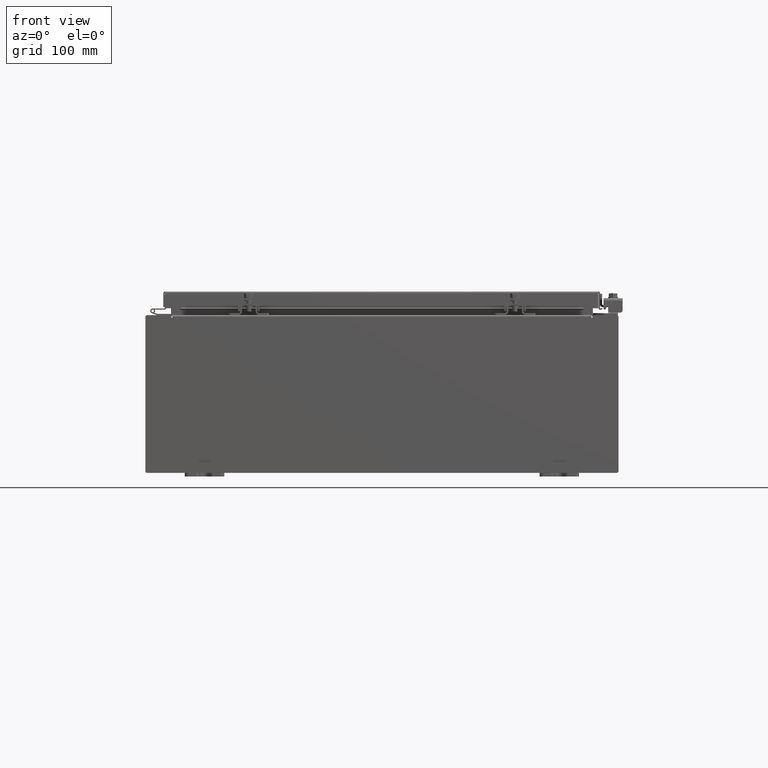
[diagram: clean part render]
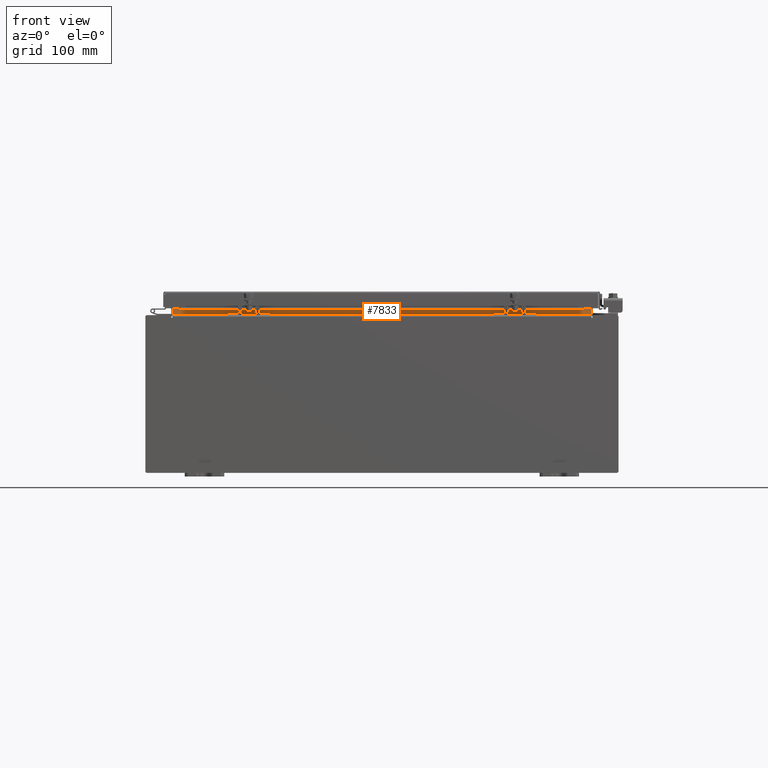
[diagram: same view with one face highlighted and labeled with its STEP entity id]
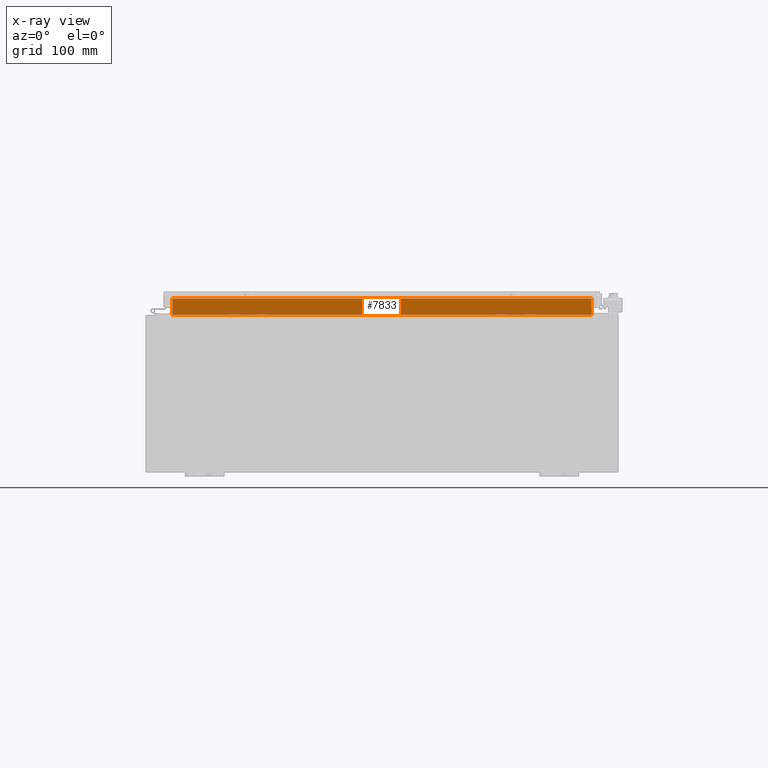
[diagram: x-ray of the same camera — body ghosted, the highlighted face saturated]
A machine part, front view. The second image highlights one B-rep face of the part: STEP entity #7833.
The next image is the same camera in x-ray: the body ghosted, the highlighted face saturated — about 0% of this face is hidden behind the body in this view.
In plain terms, the highlighted planar face has unit normal (-0, -1, 0).
Its self-contained STEP definition (entity closure, byte-faithful):
#1613 = LINE ( 'NONE', #17755, #13400 ) ;
#2536 = VERTEX_POINT ( 'NONE', #16855 ) ;
#2654 = LINE ( 'NONE', #27830, #15971 ) ;
#2908 = EDGE_LOOP ( 'NONE', ( #26193, #23553, #11348, #5687 ) ) ;
#3128 = DIRECTION ( 'NONE',  ( 1.665334536937734800E-016, -3.355183535620870000E-017, 1.000000000000000000 ) ) ;
#3920 = EDGE_CURVE ( 'NONE', #11541, #2536, #27402, .T. ) ;
#5616 = CARTESIAN_POINT ( 'NONE',  ( -10.63720000000000200, -1.300299999999999300, 4.000000000000003600 ) ) ;
#5687 = ORIENTED_EDGE ( 'NONE', *, *, #3920, .F. ) ;
#7828 = CARTESIAN_POINT ( 'NONE',  ( -10.63720000000000200, -1.300299999999999300, 4.013000000000002600 ) ) ;
#7833 = ADVANCED_FACE ( 'NONE', ( #13725 ), #12655, .T. ) ;
#8016 = CARTESIAN_POINT ( 'NONE',  ( -10.63720000000000400, -1.300299999999999300, 4.013000000000002600 ) ) ;
#10759 = VECTOR ( 'NONE', #10955, 39.37007874015748100 ) ;
#10955 = DIRECTION ( 'NONE',  ( -1.665334536937734800E-016, 3.355183535620870000E-017, -1.000000000000000000 ) ) ;
#10997 = CARTESIAN_POINT ( 'NONE',  ( -6.990993019519950100E-017, -1.300299999999999300, 5.463695987328526400E-016 ) ) ;
#11100 = CARTESIAN_POINT ( 'NONE',  ( -10.63719999999999800, -1.300299999999999300, 4.837600000000002800 ) ) ;
#11348 = ORIENTED_EDGE ( 'NONE', *, *, #19359, .F. ) ;
#11541 = VERTEX_POINT ( 'NONE', #8016 ) ;
#12655 = PLANE ( 'NONE',  #18567 ) ;
#12829 = DIRECTION ( 'NONE',  ( -1.000000000000000000, -5.376446204297056400E-017, -1.665334536937734800E-016 ) ) ;
#12916 = EDGE_CURVE ( 'NONE', #18280, #11541, #24072, .T. ) ;
#13400 = VECTOR ( 'NONE', #30212, 39.37007874015748100 ) ;
#13725 = FACE_OUTER_BOUND ( 'NONE', #2908, .T. ) ;
#14034 = VECTOR ( 'NONE', #30265, 39.37007874015748100 ) ;
#15281 = EDGE_CURVE ( 'NONE', #24254, #18280, #2654, .T. ) ;
#15971 = VECTOR ( 'NONE', #12829, 39.37007874015748100 ) ;
#16855 = CARTESIAN_POINT ( 'NONE',  ( 10.63720000000000400, -1.300299999999999300, 4.013000000000005200 ) ) ;
#17755 = CARTESIAN_POINT ( 'NONE',  ( 10.63720000000000400, -1.300299999999999300, 4.925300000000006200 ) ) ;
#18280 = VERTEX_POINT ( 'NONE', #11100 ) ;
#18567 = AXIS2_PLACEMENT_3D ( 'NONE', #10997, #30141, #3128 ) ;
#19359 = EDGE_CURVE ( 'NONE', #2536, #24254, #1613, .T. ) ;
#23553 = ORIENTED_EDGE ( 'NONE', *, *, #15281, .F. ) ;
#24072 = LINE ( 'NONE', #5616, #10759 ) ;
#24254 = VERTEX_POINT ( 'NONE', #31569 ) ;
#26193 = ORIENTED_EDGE ( 'NONE', *, *, #12916, .F. ) ;
#27402 = LINE ( 'NONE', #7828, #14034 ) ;
#27830 = CARTESIAN_POINT ( 'NONE',  ( 10.63720000000000400, -1.300299999999999300, 4.837600000000006300 ) ) ;
#30141 = DIRECTION ( 'NONE',  ( 5.376446204297057600E-017, 1.000000000000000000, 3.355183535620869400E-017 ) ) ;
#30212 = DIRECTION ( 'NONE',  ( 1.665334536937734800E-016, -3.355183535620870000E-017, 1.000000000000000000 ) ) ;
#30265 = DIRECTION ( 'NONE',  ( 1.000000000000000000, 5.376446204297056400E-017, 1.408514321687080500E-016 ) ) ;
#31569 = CARTESIAN_POINT ( 'NONE',  ( 10.63720000000000400, -1.300299999999999300, 4.837600000000006300 ) ) ;